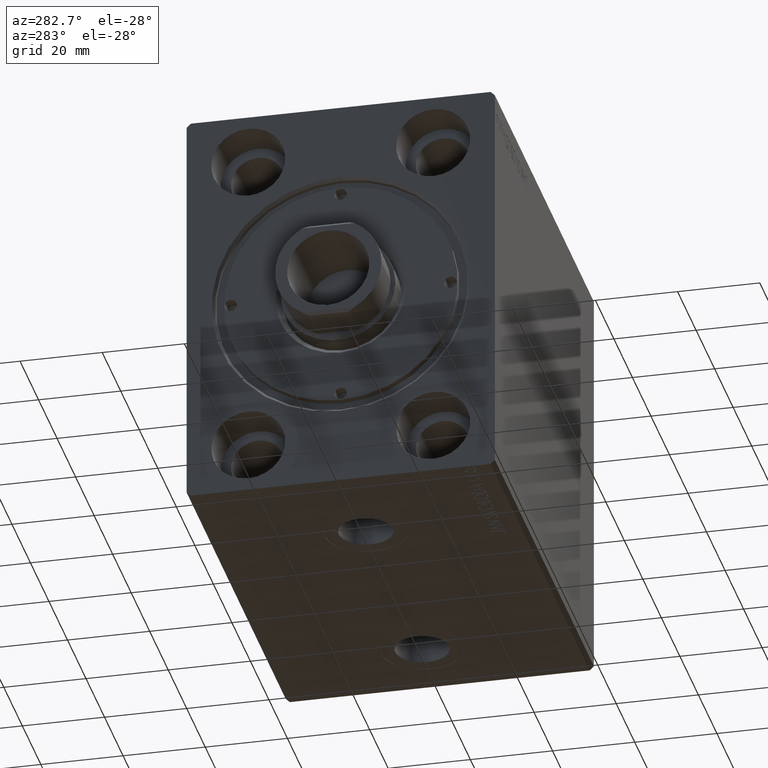
[diagram: clean part render]
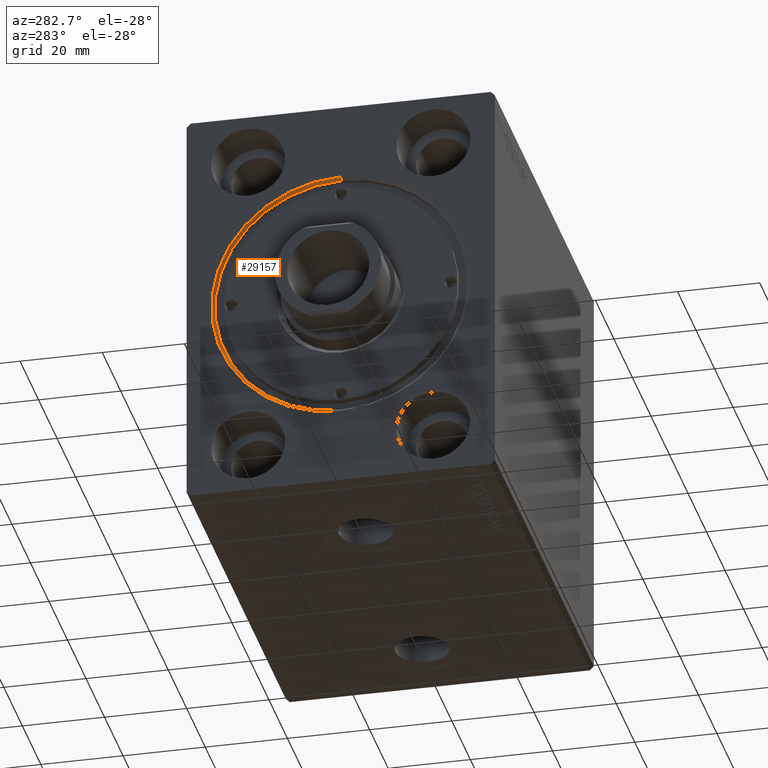
[diagram: same view with one face highlighted and labeled with its STEP entity id]
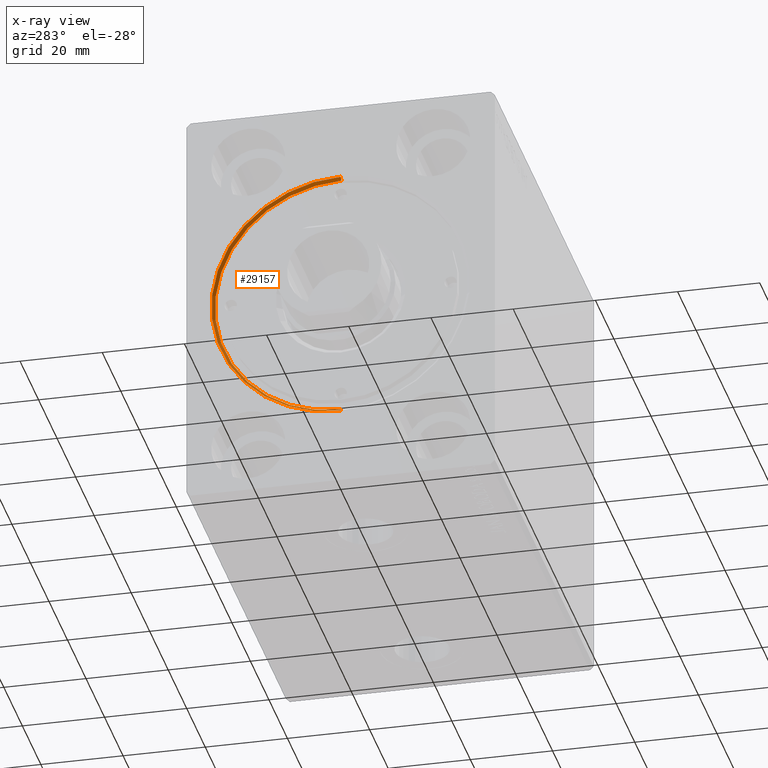
[diagram: x-ray of the same camera — body ghosted, the highlighted face saturated]
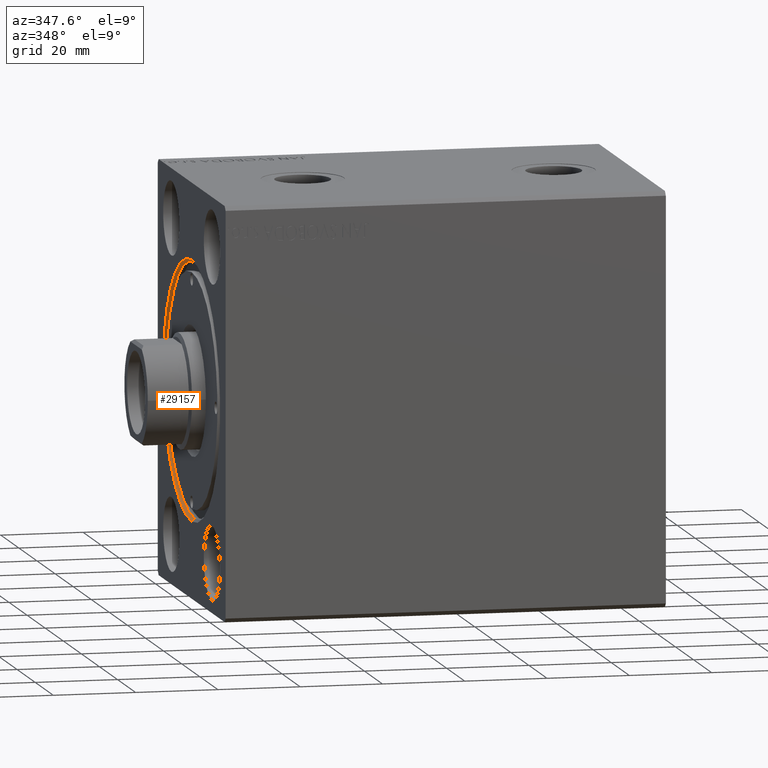
[diagram: same view with one face highlighted and labeled with its STEP entity id]
A machine part, auxiliary view. The second image highlights one B-rep face of the part: STEP entity #29157.
The next image is the same camera in x-ray: the body ghosted, the highlighted face saturated — about 0% of this face is hidden behind the body in this view.
A second angle (auxiliary view) of the same face is appended — the face is thin or edge-on in the first view.
In plain terms, the highlighted conical surface has half-angle 45 deg.
Its self-contained STEP definition (entity closure, byte-faithful):
#1204 = DIRECTION ( 'NONE',  ( 0.000000000000000000, 0.000000000000000000, 1.000000000000000000 ) ) ;
#1580 = LINE ( 'NONE', #29039, #5976 ) ;
#2472 = VERTEX_POINT ( 'NONE', #14128 ) ;
#2803 = DIRECTION ( 'NONE',  ( -1.000000000000000000, 0.000000000000000000, 0.000000000000000000 ) ) ;
#4849 = CONICAL_SURFACE ( 'NONE', #16328, 30.75000000000000355, 0.7853981633974433940 ) ;
#5830 = DIRECTION ( 'NONE',  ( -0.7071067811865509034, 8.659560562354890950E-17, -0.7071067811865441310 ) ) ;
#5976 = VECTOR ( 'NONE', #15073, 999.9999999999998863 ) ;
#7677 = ORIENTED_EDGE ( 'NONE', *, *, #28943, .F. ) ;
#8577 = CARTESIAN_POINT ( 'NONE',  ( 0.000000000000000000, 0.000000000000000000, 31.45000000000002061 ) ) ;
#9122 = CARTESIAN_POINT ( 'NONE',  ( 0.7000000000000234923, 0.000000000000000000, 0.000000000000000000 ) ) ;
#9552 = DIRECTION ( 'NONE',  ( 0.000000000000000000, 0.000000000000000000, -1.000000000000000000 ) ) ;
#11324 = CARTESIAN_POINT ( 'NONE',  ( 0.7000000000000234923, 0.000000000000000000, 0.000000000000000000 ) ) ;
#12001 = AXIS2_PLACEMENT_3D ( 'NONE', #9122, #2803, #9552 ) ;
#12062 = AXIS2_PLACEMENT_3D ( 'NONE', #36212, #26285, #15265 ) ;
#13538 = EDGE_CURVE ( 'NONE', #2472, #27722, #1580, .T. ) ;
#14128 = CARTESIAN_POINT ( 'NONE',  ( 0.7000000000000234923, 0.000000000000000000, 30.75000000000000355 ) ) ;
#15073 = DIRECTION ( 'NONE',  ( -0.7071067811865509034, 0.000000000000000000, 0.7071067811865441310 ) ) ;
#15265 = DIRECTION ( 'NONE',  ( 0.000000000000000000, 0.000000000000000000, -1.000000000000000000 ) ) ;
#16328 = AXIS2_PLACEMENT_3D ( 'NONE', #11324, #35204, #1204 ) ;
#16415 = VECTOR ( 'NONE', #5830, 999.9999999999998863 ) ;
#17276 = ORIENTED_EDGE ( 'NONE', *, *, #30583, .F. ) ;
#19567 = VERTEX_POINT ( 'NONE', #22461 ) ;
#19952 = CIRCLE ( 'NONE', #12062, 31.45000000000002061 ) ;
#22461 = CARTESIAN_POINT ( 'NONE',  ( 0.000000000000000000, 3.851514183318427194E-15, -31.45000000000002061 ) ) ;
#25488 = FACE_OUTER_BOUND ( 'NONE', #36245, .T. ) ;
#26285 = DIRECTION ( 'NONE',  ( 1.000000000000000000, 0.000000000000000000, 0.000000000000000000 ) ) ;
#27642 = ORIENTED_EDGE ( 'NONE', *, *, #13538, .T. ) ;
#27722 = VERTEX_POINT ( 'NONE', #8577 ) ;
#27815 = CIRCLE ( 'NONE', #12001, 30.75000000000000355 ) ;
#28943 = EDGE_CURVE ( 'NONE', #2472, #36958, #27815, .T. ) ;
#29039 = CARTESIAN_POINT ( 'NONE',  ( 0.7000000000000234923, 0.000000000000000000, 30.75000000000000355 ) ) ;
#29157 = ADVANCED_FACE ( 'NONE', ( #25488 ), #4849, .F. ) ;
#30194 = CARTESIAN_POINT ( 'NONE',  ( 0.7000000000000234923, 3.765788907378111328E-15, -30.75000000000000355 ) ) ;
#30583 = EDGE_CURVE ( 'NONE', #19567, #27722, #19952, .T. ) ;
#35204 = DIRECTION ( 'NONE',  ( -1.000000000000000000, 0.000000000000000000, 0.000000000000000000 ) ) ;
#36212 = CARTESIAN_POINT ( 'NONE',  ( 0.000000000000000000, 0.000000000000000000, 0.000000000000000000 ) ) ;
#36245 = EDGE_LOOP ( 'NONE', ( #41825, #7677, #27642, #17276 ) ) ;
#36424 = EDGE_CURVE ( 'NONE', #36958, #19567, #43404, .T. ) ;
#36660 = CARTESIAN_POINT ( 'NONE',  ( 0.7000000000000234923, 3.765788907378110539E-15, -30.75000000000000355 ) ) ;
#36958 = VERTEX_POINT ( 'NONE', #30194 ) ;
#41825 = ORIENTED_EDGE ( 'NONE', *, *, #36424, .F. ) ;
#43404 = LINE ( 'NONE', #36660, #16415 ) ;